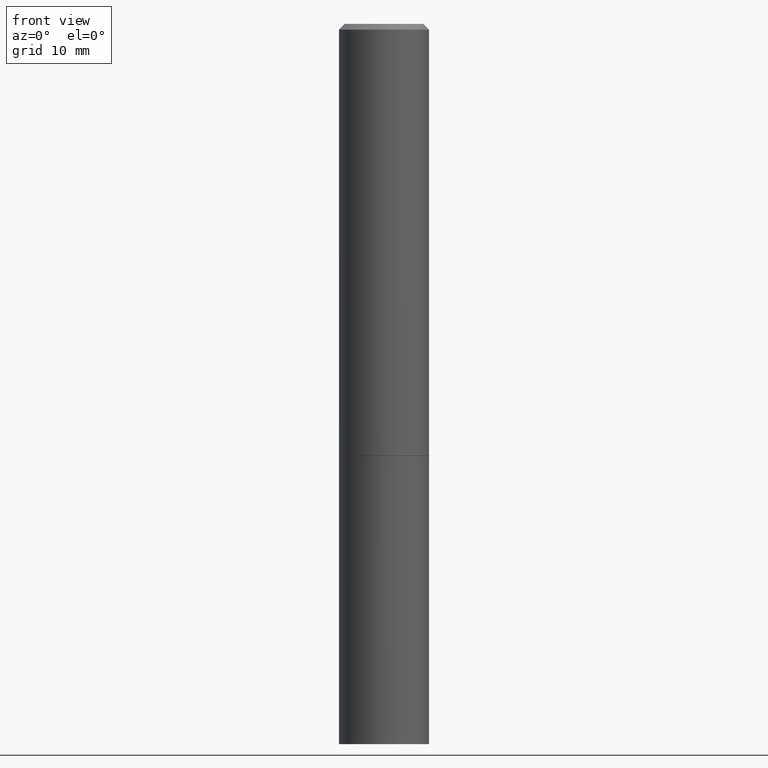
[diagram: clean part render]
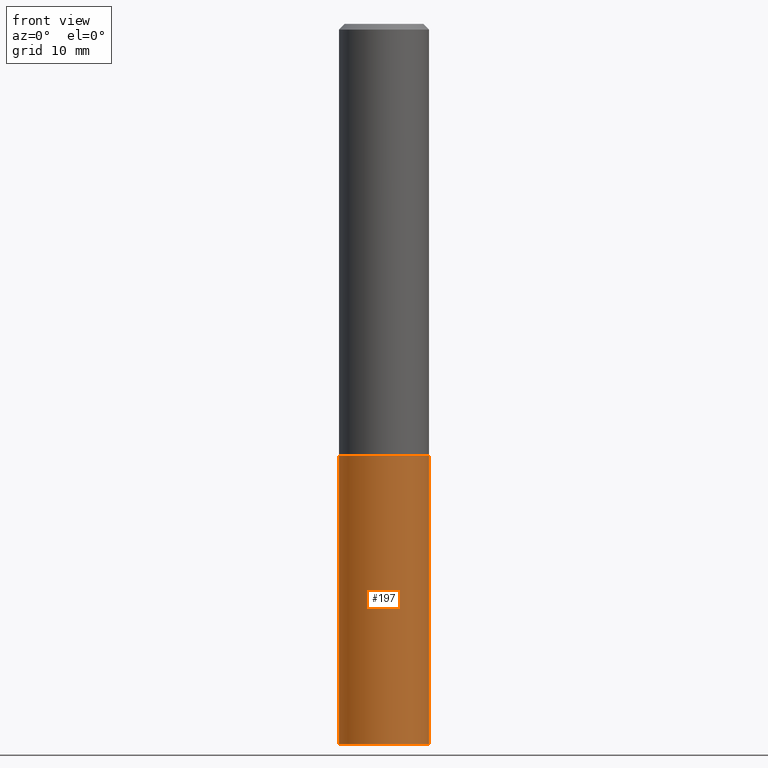
[diagram: same view with one face highlighted and labeled with its STEP entity id]
A machine part, front view. The second image highlights one B-rep face of the part: STEP entity #197.
In plain terms, the highlighted cylindrical surface (partial cylindrical patch) has radius 3.9688 mm, axis along (-0, 0, 1).
Its self-contained STEP definition (entity closure, byte-faithful):
#10 = DIRECTION ( 'NONE',  ( -2.445468806185136877E-29, 3.491481338843145188E-15, 1.000000000000000000 ) ) ;
#20 = ORIENTED_EDGE ( 'NONE', *, *, #300, .F. ) ;
#36 = FACE_OUTER_BOUND ( 'NONE', #356, .T. ) ;
#43 = CARTESIAN_POINT ( 'NONE',  ( 6.113672015462842613E-29, -8.728703347107864943E-15, -2.500000000000000000 ) ) ;
#48 = VECTOR ( 'NONE', #317, 39.37007874015748143 ) ;
#69 = DIRECTION ( 'NONE',  ( -2.445468806185136597E-29, 3.491481338843145583E-15, 1.000000000000000000 ) ) ;
#72 = CIRCLE ( 'NONE', #354, 0.1562500000000000000 ) ;
#87 = CARTESIAN_POINT ( 'NONE',  ( 3.668203209277704895E-29, -5.237222008264718177E-15, -1.500000000000000222 ) ) ;
#89 = CARTESIAN_POINT ( 'NONE',  ( 0.1562500000000000000, -1.091087918388479174E-15, 7.619026212181150377E-30 ) ) ;
#111 = CARTESIAN_POINT ( 'NONE',  ( 0.1562500000000000000, -6.328309926653198139E-15, -1.500000000000000222 ) ) ;
#142 = CARTESIAN_POINT ( 'NONE',  ( 0.000000000000000000, 0.000000000000000000, 0.000000000000000000 ) ) ;
#150 = EDGE_CURVE ( 'NONE', #184, #237, #326, .T. ) ;
#151 = AXIS2_PLACEMENT_3D ( 'NONE', #142, #227, #167 ) ;
#166 = CARTESIAN_POINT ( 'NONE',  ( 0.1562500000000000000, -9.819791265496344905E-15, -2.500000000000000000 ) ) ;
#167 = DIRECTION ( 'NONE',  ( 1.000000000000000000, -6.982962677686266711E-15, 4.876176775795936353E-29 ) ) ;
#184 = VERTEX_POINT ( 'NONE', #224 ) ;
#195 = CYLINDRICAL_SURFACE ( 'NONE', #151, 0.1562500000000000000 ) ;
#197 = ADVANCED_FACE ( 'NONE', ( #36 ), #195, .T. ) ;
#198 = DIRECTION ( 'NONE',  ( -2.445468806185136597E-29, 3.491481338843145583E-15, 1.000000000000000000 ) ) ;
#200 = LINE ( 'NONE', #89, #48 ) ;
#203 = DIRECTION ( 'NONE',  ( 1.000000000000000000, -6.982962677686269077E-15, 0.000000000000000000 ) ) ;
#208 = VERTEX_POINT ( 'NONE', #254 ) ;
#224 = CARTESIAN_POINT ( 'NONE',  ( -0.1562500000000000000, -5.872739653061135414E-15, -1.500000000000000222 ) ) ;
#227 = DIRECTION ( 'NONE',  ( -2.445468806185136597E-29, 3.491481338843145583E-15, 1.000000000000000000 ) ) ;
#237 = VERTEX_POINT ( 'NONE', #111 ) ;
#242 = EDGE_CURVE ( 'NONE', #332, #237, #200, .T. ) ;
#254 = CARTESIAN_POINT ( 'NONE',  ( -0.1562500000000000000, -5.872739653061135414E-15, -2.500000000000000000 ) ) ;
#259 = LINE ( 'NONE', #284, #280 ) ;
#280 = VECTOR ( 'NONE', #10, 39.37007874015748143 ) ;
#284 = CARTESIAN_POINT ( 'NONE',  ( -0.1562500000000000000, 1.110223024625156540E-15, -7.685836078523291160E-30 ) ) ;
#296 = DIRECTION ( 'NONE',  ( 1.000000000000000000, -6.982962677686269077E-15, 0.000000000000000000 ) ) ;
#299 = ORIENTED_EDGE ( 'NONE', *, *, #309, .T. ) ;
#300 = EDGE_CURVE ( 'NONE', #208, #184, #259, .T. ) ;
#309 = EDGE_CURVE ( 'NONE', #208, #332, #72, .T. ) ;
#317 = DIRECTION ( 'NONE',  ( -2.445468806185136877E-29, 3.491481338843145188E-15, 1.000000000000000000 ) ) ;
#326 = CIRCLE ( 'NONE', #353, 0.1562500000000000000 ) ;
#328 = ORIENTED_EDGE ( 'NONE', *, *, #150, .F. ) ;
#332 = VERTEX_POINT ( 'NONE', #166 ) ;
#353 = AXIS2_PLACEMENT_3D ( 'NONE', #87, #198, #203 ) ;
#354 = AXIS2_PLACEMENT_3D ( 'NONE', #43, #69, #296 ) ;
#356 = EDGE_LOOP ( 'NONE', ( #20, #299, #360, #328 ) ) ;
#360 = ORIENTED_EDGE ( 'NONE', *, *, #242, .T. ) ;